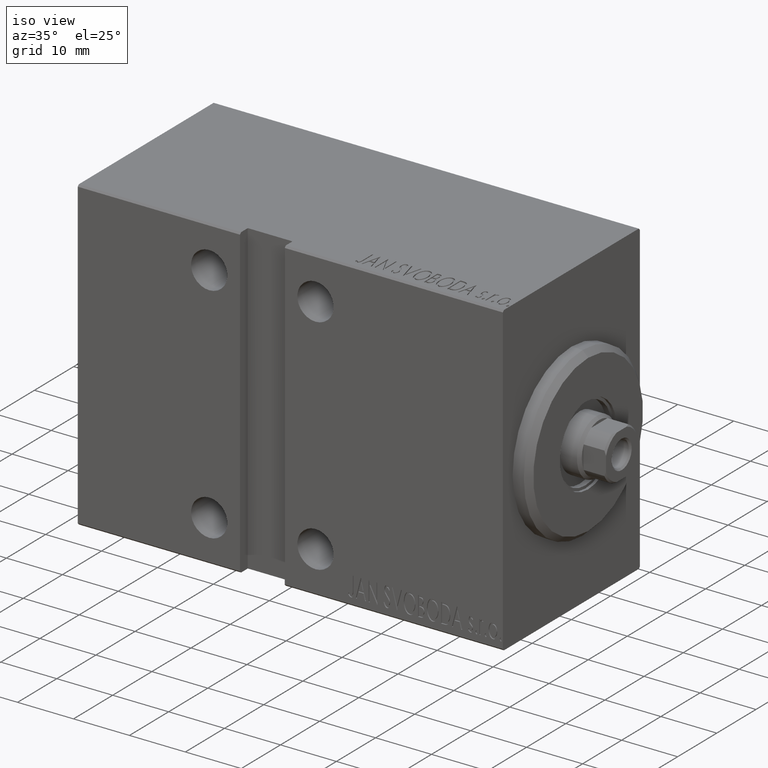
[diagram: clean part render]
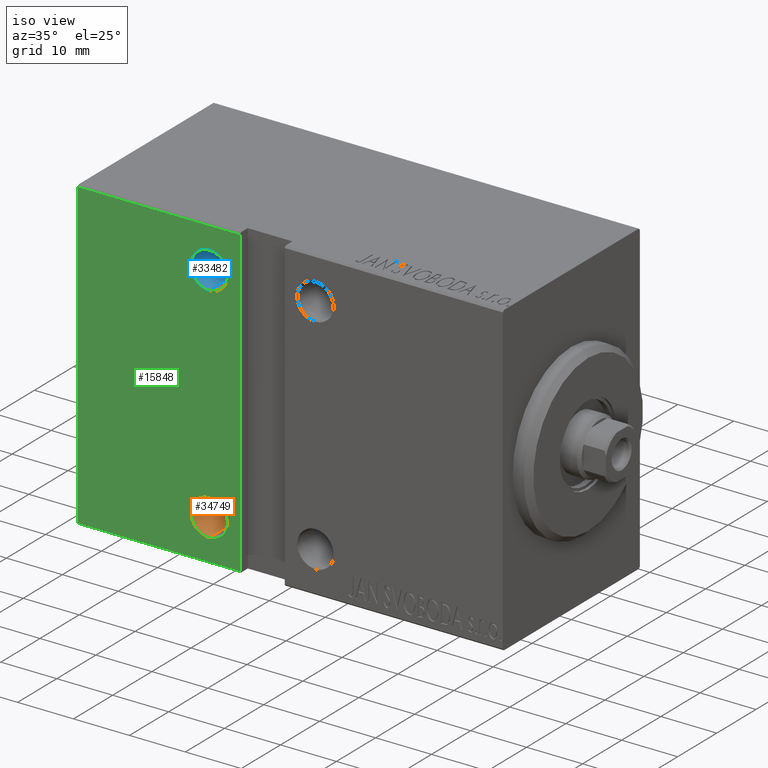
[diagram: same view with three faces highlighted in distinct colors, each labeled with its STEP entity id]
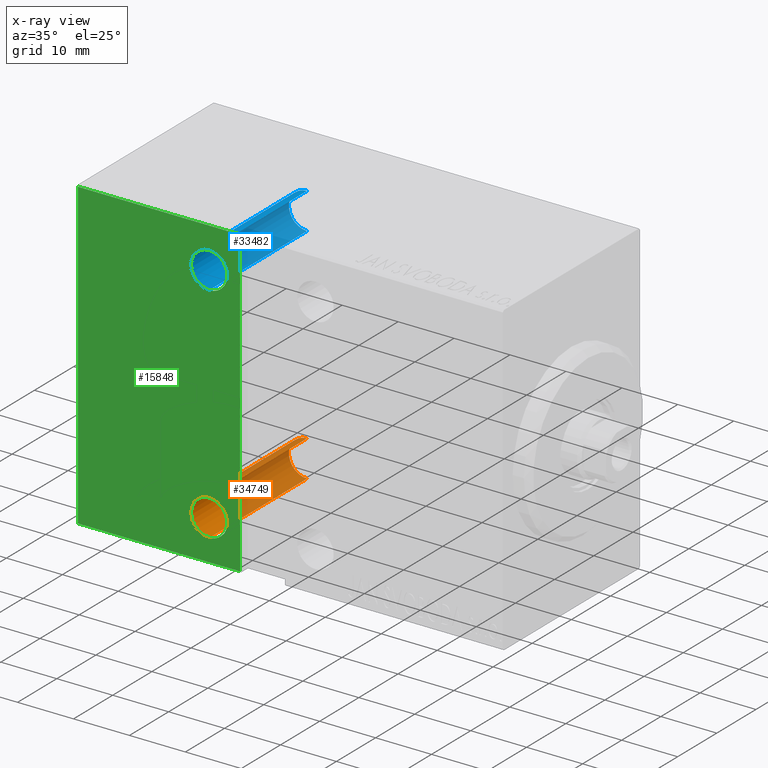
[diagram: x-ray of the same camera — body ghosted, the three highlighted faces saturated]
A machine part, iso view with three faces highlighted in distinct colors.
The next image is the same camera in x-ray (body ghosted, the three faces saturated) — at least one of them is partly hidden behind the body in this view.
Their STEP definitions:

[orange] entity #34749 — the highlighted cylindrical surface (edge-blend (fillet) strip) has radius 3.25 mm, axis along (0, -1, 0).
#319 = CARTESIAN_POINT ( 'NONE',  ( 52.50000000000000711, -7.499999999999998224, -23.25000000000000000 ) ) ;
#1912 = CARTESIAN_POINT ( 'NONE',  ( 52.50000000000000711, -17.50000000000001776, -16.75000000000000000 ) ) ;
#2132 = LINE ( 'NONE', #1912, #4550 ) ;
#2454 = CARTESIAN_POINT ( 'NONE',  ( 52.50000000000000711, 17.50000000000000355, -23.24999999999999645 ) ) ;
#4550 = VECTOR ( 'NONE', #38483, 1000.000000000000000 ) ;
#4668 = VERTEX_POINT ( 'NONE', #2454 ) ;
#4728 = EDGE_CURVE ( 'NONE', #21953, #18878, #2132, .T. ) ;
#4753 = CARTESIAN_POINT ( 'NONE',  ( 52.50000000000000711, -7.499999999999998224, -20.00000000000000000 ) ) ;
#5036 = VERTEX_POINT ( 'NONE', #319 ) ;
#7695 = FACE_OUTER_BOUND ( 'NONE', #33366, .T. ) ;
#9234 = AXIS2_PLACEMENT_3D ( 'NONE', #27906, #31423, #17822 ) ;
#10284 = CARTESIAN_POINT ( 'NONE',  ( 52.50000000000000711, -7.499999999999998224, -16.75000000000000000 ) ) ;
#11036 = DIRECTION ( 'NONE',  ( -0.000000000000000000, 1.000000000000000000, 1.261617073437677752E-16 ) ) ;
#13948 = DIRECTION ( 'NONE',  ( 0.000000000000000000, 0.000000000000000000, -1.000000000000000000 ) ) ;
#15722 = CARTESIAN_POINT ( 'NONE',  ( 52.50000000000000711, 17.50000000000000355, -16.74999999999999645 ) ) ;
#16099 = VECTOR ( 'NONE', #11036, 1000.000000000000000 ) ;
#16909 = CARTESIAN_POINT ( 'NONE',  ( 52.50000000000000711, -17.50000000000001776, -20.00000000000000000 ) ) ;
#17822 = DIRECTION ( 'NONE',  ( 0.000000000000000000, 0.000000000000000000, -1.000000000000000000 ) ) ;
#18878 = VERTEX_POINT ( 'NONE', #15722 ) ;
#20413 = DIRECTION ( 'NONE',  ( -0.000000000000000000, 1.000000000000000000, 1.261617073437677752E-16 ) ) ;
#21533 = LINE ( 'NONE', #37990, #16099 ) ;
#21953 = VERTEX_POINT ( 'NONE', #10284 ) ;
#22422 = CIRCLE ( 'NONE', #39942, 3.249999999999999556 ) ;
#23698 = CYLINDRICAL_SURFACE ( 'NONE', #26779, 3.249999999999999556 ) ;
#24344 = ORIENTED_EDGE ( 'NONE', *, *, #28842, .F. ) ;
#24461 = DIRECTION ( 'NONE',  ( -0.000000000000000000, 1.000000000000000000, -0.000000000000000000 ) ) ;
#26779 = AXIS2_PLACEMENT_3D ( 'NONE', #16909, #20413, #27207 ) ;
#27207 = DIRECTION ( 'NONE',  ( 0.000000000000000000, 0.000000000000000000, 1.000000000000000000 ) ) ;
#27302 = EDGE_CURVE ( 'NONE', #5036, #4668, #21533, .T. ) ;
#27906 = CARTESIAN_POINT ( 'NONE',  ( 52.50000000000000711, 17.50000000000000355, -19.99999999999999645 ) ) ;
#28842 = EDGE_CURVE ( 'NONE', #21953, #5036, #22422, .T. ) ;
#29410 = ORIENTED_EDGE ( 'NONE', *, *, #27302, .F. ) ;
#31423 = DIRECTION ( 'NONE',  ( 0.000000000000000000, -1.000000000000000000, -1.261617073437677752E-16 ) ) ;
#33366 = EDGE_LOOP ( 'NONE', ( #29410, #24344, #39727, #40544 ) ) ;
#34405 = CIRCLE ( 'NONE', #9234, 3.249999999999999556 ) ;
#34749 = ADVANCED_FACE ( 'NONE', ( #7695 ), #23698, .F. ) ;
#37785 = EDGE_CURVE ( 'NONE', #4668, #18878, #34405, .T. ) ;
#37990 = CARTESIAN_POINT ( 'NONE',  ( 52.50000000000000711, -17.50000000000001776, -23.25000000000000000 ) ) ;
#38483 = DIRECTION ( 'NONE',  ( -0.000000000000000000, 1.000000000000000000, 1.261617073437677752E-16 ) ) ;
#39727 = ORIENTED_EDGE ( 'NONE', *, *, #4728, .T. ) ;
#39942 = AXIS2_PLACEMENT_3D ( 'NONE', #4753, #24461, #13948 ) ;
#40544 = ORIENTED_EDGE ( 'NONE', *, *, #37785, .F. ) ;

[blue] entity #33482 — the highlighted cylindrical surface (edge-blend (fillet) strip) has radius 3.25 mm, axis along (0, -1, 0).
#779 = VECTOR ( 'NONE', #42580, 1000.000000000000000 ) ;
#837 = VECTOR ( 'NONE', #20365, 1000.000000000000000 ) ;
#2069 = DIRECTION ( 'NONE',  ( 0.000000000000000000, 0.000000000000000000, -1.000000000000000000 ) ) ;
#2533 = FACE_OUTER_BOUND ( 'NONE', #17369, .T. ) ;
#2964 = CARTESIAN_POINT ( 'NONE',  ( 52.50000000000000711, -17.50000000000002487, 20.00000000000000355 ) ) ;
#3203 = VERTEX_POINT ( 'NONE', #27240 ) ;
#3520 = CARTESIAN_POINT ( 'NONE',  ( 52.50000000000000711, -17.50000000000002487, 23.25000000000000711 ) ) ;
#4717 = DIRECTION ( 'NONE',  ( 0.000000000000000000, -1.000000000000000000, -1.261617073437677752E-16 ) ) ;
#5388 = ORIENTED_EDGE ( 'NONE', *, *, #31703, .T. ) ;
#6706 = EDGE_CURVE ( 'NONE', #3203, #34841, #24086, .T. ) ;
#10799 = AXIS2_PLACEMENT_3D ( 'NONE', #38422, #34923, #2069 ) ;
#11930 = DIRECTION ( 'NONE',  ( 0.000000000000000000, 0.000000000000000000, -1.000000000000000000 ) ) ;
#13640 = VERTEX_POINT ( 'NONE', #35439 ) ;
#14677 = ORIENTED_EDGE ( 'NONE', *, *, #6706, .F. ) ;
#14834 = AXIS2_PLACEMENT_3D ( 'NONE', #38451, #4717, #11930 ) ;
#15245 = ORIENTED_EDGE ( 'NONE', *, *, #42795, .F. ) ;
#16306 = DIRECTION ( 'NONE',  ( 0.000000000000000000, 0.000000000000000000, 1.000000000000000000 ) ) ;
#17369 = EDGE_LOOP ( 'NONE', ( #22841, #14677, #5388, #15245 ) ) ;
#18343 = CIRCLE ( 'NONE', #14834, 3.249999999999999556 ) ;
#18896 = CARTESIAN_POINT ( 'NONE',  ( 52.50000000000000711, 17.49999999999999645, 16.75000000000000711 ) ) ;
#20365 = DIRECTION ( 'NONE',  ( -0.000000000000000000, 1.000000000000000000, 1.261617073437677752E-16 ) ) ;
#22643 = LINE ( 'NONE', #40163, #779 ) ;
#22841 = ORIENTED_EDGE ( 'NONE', *, *, #29161, .F. ) ;
#24086 = CIRCLE ( 'NONE', #10799, 3.250000000000002665 ) ;
#27240 = CARTESIAN_POINT ( 'NONE',  ( 52.50000000000000711, -7.499999999999998224, 23.25000000000000711 ) ) ;
#29161 = EDGE_CURVE ( 'NONE', #34841, #33691, #22643, .T. ) ;
#31703 = EDGE_CURVE ( 'NONE', #3203, #13640, #40307, .T. ) ;
#33482 = ADVANCED_FACE ( 'NONE', ( #2533 ), #36690, .F. ) ;
#33691 = VERTEX_POINT ( 'NONE', #18896 ) ;
#33723 = AXIS2_PLACEMENT_3D ( 'NONE', #2964, #42817, #16306 ) ;
#34841 = VERTEX_POINT ( 'NONE', #41430 ) ;
#34923 = DIRECTION ( 'NONE',  ( -0.000000000000000000, 1.000000000000000000, -0.000000000000000000 ) ) ;
#35439 = CARTESIAN_POINT ( 'NONE',  ( 52.50000000000000711, 17.49999999999999645, 23.25000000000000711 ) ) ;
#36690 = CYLINDRICAL_SURFACE ( 'NONE', #33723, 3.250000000000002665 ) ;
#38422 = CARTESIAN_POINT ( 'NONE',  ( 52.50000000000000711, -7.499999999999998224, 20.00000000000000355 ) ) ;
#38451 = CARTESIAN_POINT ( 'NONE',  ( 52.50000000000000711, 17.49999999999999645, 20.00000000000000711 ) ) ;
#40163 = CARTESIAN_POINT ( 'NONE',  ( 52.50000000000000711, -17.50000000000002487, 16.75000000000000000 ) ) ;
#40307 = LINE ( 'NONE', #3520, #837 ) ;
#41430 = CARTESIAN_POINT ( 'NONE',  ( 52.50000000000000711, -7.499999999999998224, 16.75000000000000355 ) ) ;
#42580 = DIRECTION ( 'NONE',  ( -0.000000000000000000, 1.000000000000000000, 1.261617073437677752E-16 ) ) ;
#42795 = EDGE_CURVE ( 'NONE', #33691, #13640, #18343, .T. ) ;
#42817 = DIRECTION ( 'NONE',  ( -0.000000000000000000, 1.000000000000000000, 1.261617073437677752E-16 ) ) ;

[green] entity #15848 — the highlighted planar face has unit normal (-0, 1, -0).
#1703 = ORIENTED_EDGE ( 'NONE', *, *, #42795, .T. ) ;
#1948 = DIRECTION ( 'NONE',  ( -1.000000000000000000, 0.000000000000000000, 0.000000000000000000 ) ) ;
#2152 = AXIS2_PLACEMENT_3D ( 'NONE', #3580, #14055, #16708 ) ;
#2454 = CARTESIAN_POINT ( 'NONE',  ( 52.50000000000000711, 17.50000000000000355, -23.24999999999999645 ) ) ;
#3580 = CARTESIAN_POINT ( 'NONE',  ( 52.50000000000000711, 17.49999999999999645, 20.00000000000000711 ) ) ;
#4514 = VECTOR ( 'NONE', #10047, 1000.000000000000000 ) ;
#4668 = VERTEX_POINT ( 'NONE', #2454 ) ;
#4717 = DIRECTION ( 'NONE',  ( 0.000000000000000000, -1.000000000000000000, -1.261617073437677752E-16 ) ) ;
#5060 = CARTESIAN_POINT ( 'NONE',  ( 76.00000000000000000, 17.49999999999999645, 27.20000000000002416 ) ) ;
#5135 = FACE_OUTER_BOUND ( 'NONE', #5190, .T. ) ;
#5190 = EDGE_LOOP ( 'NONE', ( #22337, #33511, #40728, #26919 ) ) ;
#5607 = EDGE_LOOP ( 'NONE', ( #16628, #26577 ) ) ;
#5948 = CARTESIAN_POINT ( 'NONE',  ( 47.00000000000000711, 17.49999999999999645, 27.20000000000002771 ) ) ;
#6327 = EDGE_CURVE ( 'NONE', #32461, #9070, #6330, .T. ) ;
#6330 = LINE ( 'NONE', #39198, #4514 ) ;
#6349 = ORIENTED_EDGE ( 'NONE', *, *, #28221, .T. ) ;
#7183 = AXIS2_PLACEMENT_3D ( 'NONE', #7253, #20614, #33995 ) ;
#7253 = CARTESIAN_POINT ( 'NONE',  ( 52.50000000000000711, 17.50000000000000355, -19.99999999999999645 ) ) ;
#8952 = CARTESIAN_POINT ( 'NONE',  ( 76.00000000000000000, 17.50000000000000355, -27.20000000000000995 ) ) ;
#9070 = VERTEX_POINT ( 'NONE', #28313 ) ;
#9234 = AXIS2_PLACEMENT_3D ( 'NONE', #27906, #31423, #17822 ) ;
#10047 = DIRECTION ( 'NONE',  ( -1.261617073437678492E-16, 1.261617073437678492E-16, -1.000000000000000000 ) ) ;
#11930 = DIRECTION ( 'NONE',  ( 0.000000000000000000, 0.000000000000000000, -1.000000000000000000 ) ) ;
#13634 = LINE ( 'NONE', #23926, #32046 ) ;
#13640 = VERTEX_POINT ( 'NONE', #35439 ) ;
#14055 = DIRECTION ( 'NONE',  ( 0.000000000000000000, -1.000000000000000000, -1.261617073437677752E-16 ) ) ;
#14834 = AXIS2_PLACEMENT_3D ( 'NONE', #38451, #4717, #11930 ) ;
#15188 = FACE_BOUND ( 'NONE', #18524, .T. ) ;
#15237 = EDGE_CURVE ( 'NONE', #19433, #33352, #13634, .T. ) ;
#15722 = CARTESIAN_POINT ( 'NONE',  ( 52.50000000000000711, 17.50000000000000355, -16.74999999999999645 ) ) ;
#15848 = ADVANCED_FACE ( 'NONE', ( #27703, #15188, #5135 ), #18487, .F. ) ;
#16628 = ORIENTED_EDGE ( 'NONE', *, *, #36097, .T. ) ;
#16708 = DIRECTION ( 'NONE',  ( 0.000000000000000000, 0.000000000000000000, -1.000000000000000000 ) ) ;
#17822 = DIRECTION ( 'NONE',  ( 0.000000000000000000, 0.000000000000000000, -1.000000000000000000 ) ) ;
#18343 = CIRCLE ( 'NONE', #14834, 3.249999999999999556 ) ;
#18487 = PLANE ( 'NONE',  #34820 ) ;
#18524 = EDGE_LOOP ( 'NONE', ( #6349, #1703 ) ) ;
#18878 = VERTEX_POINT ( 'NONE', #15722 ) ;
#18896 = CARTESIAN_POINT ( 'NONE',  ( 52.50000000000000711, 17.49999999999999645, 16.75000000000000711 ) ) ;
#19433 = VERTEX_POINT ( 'NONE', #8952 ) ;
#20614 = DIRECTION ( 'NONE',  ( 0.000000000000000000, -1.000000000000000000, -1.261617073437677752E-16 ) ) ;
#20966 = VECTOR ( 'NONE', #37927, 1000.000000000000000 ) ;
#21476 = LINE ( 'NONE', #5060, #20966 ) ;
#21987 = DIRECTION ( 'NONE',  ( 0.000000000000000000, -1.000000000000000000, -1.261617073437677752E-16 ) ) ;
#22337 = ORIENTED_EDGE ( 'NONE', *, *, #15237, .F. ) ;
#23107 = CIRCLE ( 'NONE', #2152, 3.249999999999999556 ) ;
#23926 = CARTESIAN_POINT ( 'NONE',  ( 76.00000000000000000, 17.50000000000000355, -27.50000000000000355 ) ) ;
#25328 = VECTOR ( 'NONE', #1948, 1000.000000000000000 ) ;
#25741 = CARTESIAN_POINT ( 'NONE',  ( 76.00000000000000000, 17.49999999999999645, 27.20000000000002416 ) ) ;
#26577 = ORIENTED_EDGE ( 'NONE', *, *, #37785, .T. ) ;
#26734 = EDGE_CURVE ( 'NONE', #32461, #33352, #21476, .T. ) ;
#26919 = ORIENTED_EDGE ( 'NONE', *, *, #26734, .T. ) ;
#27703 = FACE_BOUND ( 'NONE', #5607, .T. ) ;
#27906 = CARTESIAN_POINT ( 'NONE',  ( 52.50000000000000711, 17.50000000000000355, -19.99999999999999645 ) ) ;
#28221 = EDGE_CURVE ( 'NONE', #13640, #33691, #23107, .T. ) ;
#28313 = CARTESIAN_POINT ( 'NONE',  ( 47.00000000000000000, 17.50000000000000355, -27.20000000000000995 ) ) ;
#29096 = LINE ( 'NONE', #31955, #25328 ) ;
#31423 = DIRECTION ( 'NONE',  ( 0.000000000000000000, -1.000000000000000000, -1.261617073437677752E-16 ) ) ;
#31955 = CARTESIAN_POINT ( 'NONE',  ( 76.00000000000000000, 17.50000000000000355, -27.20000000000000995 ) ) ;
#32046 = VECTOR ( 'NONE', #37084, 1000.000000000000000 ) ;
#32461 = VERTEX_POINT ( 'NONE', #5948 ) ;
#33352 = VERTEX_POINT ( 'NONE', #25741 ) ;
#33511 = ORIENTED_EDGE ( 'NONE', *, *, #34263, .T. ) ;
#33691 = VERTEX_POINT ( 'NONE', #18896 ) ;
#33792 = CIRCLE ( 'NONE', #7183, 3.249999999999999556 ) ;
#33995 = DIRECTION ( 'NONE',  ( 0.000000000000000000, 0.000000000000000000, -1.000000000000000000 ) ) ;
#34263 = EDGE_CURVE ( 'NONE', #19433, #9070, #29096, .T. ) ;
#34405 = CIRCLE ( 'NONE', #9234, 3.249999999999999556 ) ;
#34820 = AXIS2_PLACEMENT_3D ( 'NONE', #38649, #21987, #35369 ) ;
#35369 = DIRECTION ( 'NONE',  ( 0.000000000000000000, 1.261617073437677752E-16, -1.000000000000000000 ) ) ;
#35439 = CARTESIAN_POINT ( 'NONE',  ( 52.50000000000000711, 17.49999999999999645, 23.25000000000000711 ) ) ;
#36097 = EDGE_CURVE ( 'NONE', #18878, #4668, #33792, .T. ) ;
#37084 = DIRECTION ( 'NONE',  ( 0.000000000000000000, -1.261617073437677752E-16, 1.000000000000000000 ) ) ;
#37785 = EDGE_CURVE ( 'NONE', #4668, #18878, #34405, .T. ) ;
#37927 = DIRECTION ( 'NONE',  ( 1.000000000000000000, 0.000000000000000000, 0.000000000000000000 ) ) ;
#38451 = CARTESIAN_POINT ( 'NONE',  ( 52.50000000000000711, 17.49999999999999645, 20.00000000000000711 ) ) ;
#38649 = CARTESIAN_POINT ( 'NONE',  ( 76.00000000000000000, 17.50000000000000355, -27.50000000000000355 ) ) ;
#39198 = CARTESIAN_POINT ( 'NONE',  ( 47.00000000000000000, 17.50000000000000355, -27.49999999999997158 ) ) ;
#40728 = ORIENTED_EDGE ( 'NONE', *, *, #6327, .F. ) ;
#42795 = EDGE_CURVE ( 'NONE', #33691, #13640, #18343, .T. ) ;